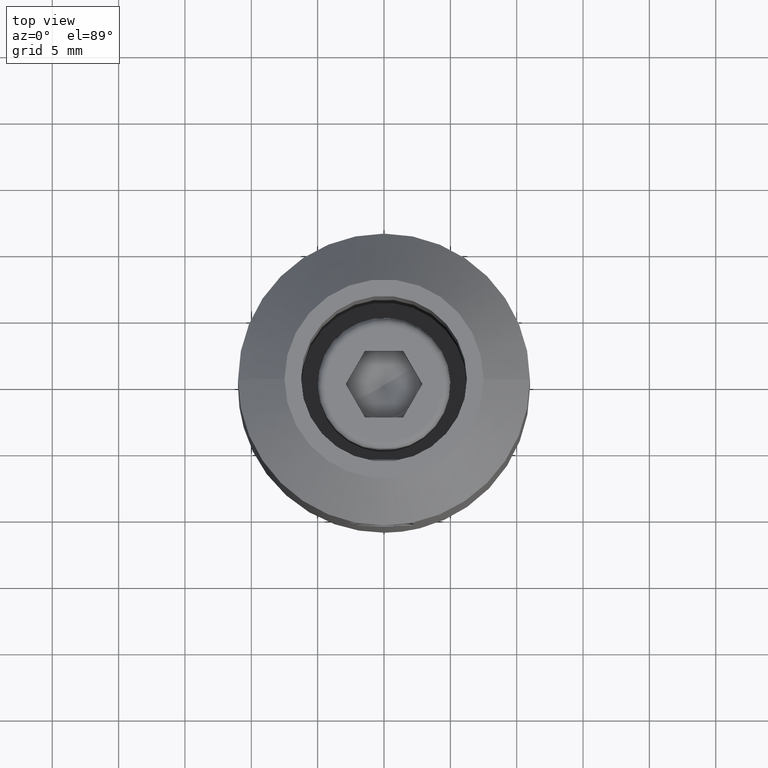
[diagram: clean part render]
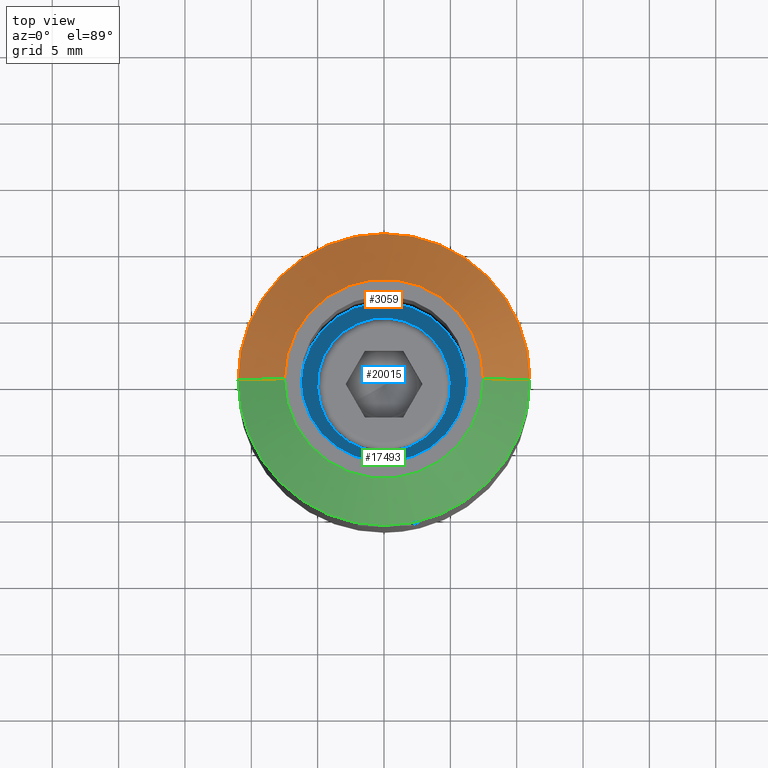
[diagram: same view with three faces highlighted in distinct colors, each labeled with its STEP entity id]
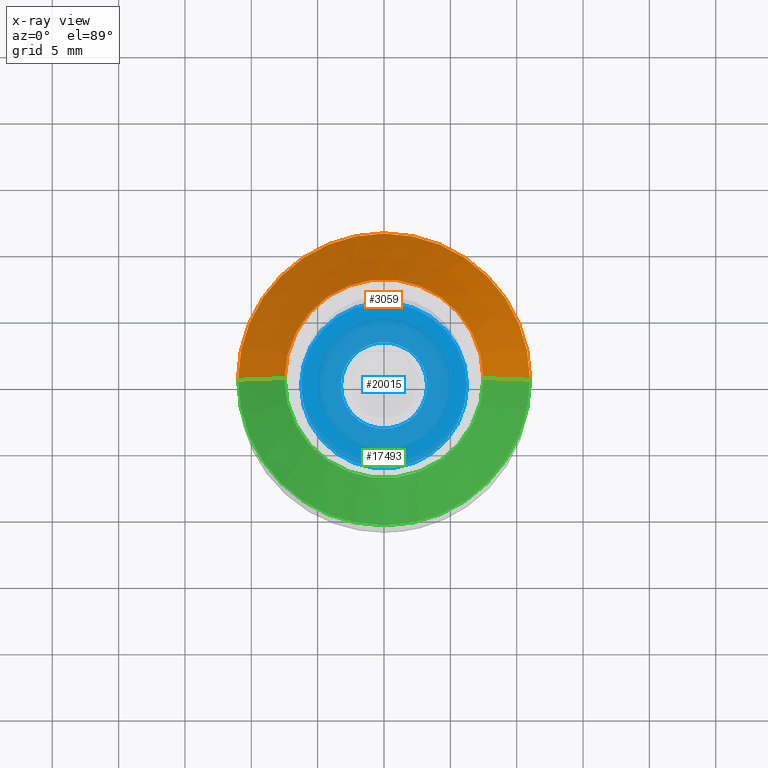
[diagram: x-ray of the same camera — body ghosted, the three highlighted faces saturated]
A machine part, top view with three faces highlighted in distinct colors.
The next image is the same camera in x-ray (body ghosted, the three faces saturated) — at least one of them is partly hidden behind the body in this view.
Their STEP definitions:

[orange] entity #3059 — the highlighted conical surface has half-angle 45 deg.
#14 = ORIENTED_EDGE ( 'NONE', *, *, #19400, .F. ) ;
#409 = CARTESIAN_POINT ( 'NONE',  ( 7.499999999999978684, 1.132798289211299923E-15, 35.00000000000000000 ) ) ;
#503 = CARTESIAN_POINT ( 'NONE',  ( -7.499999999999978684, 0.000000000000000000, 35.00000000000000000 ) ) ;
#655 = EDGE_LOOP ( 'NONE', ( #1588, #1096, #14, #19561 ) ) ;
#1096 = ORIENTED_EDGE ( 'NONE', *, *, #21125, .T. ) ;
#1588 = ORIENTED_EDGE ( 'NONE', *, *, #16878, .F. ) ;
#1961 = VECTOR ( 'NONE', #19309, 1000.000000000000114 ) ;
#2248 = LINE ( 'NONE', #12441, #1961 ) ;
#2313 = CARTESIAN_POINT ( 'NONE',  ( 0.000000000000000000, 0.000000000000000000, 31.50000000000000000 ) ) ;
#3059 = ADVANCED_FACE ( 'NONE', ( #21738 ), #10776, .T. ) ;
#3599 = DIRECTION ( 'NONE',  ( -0.7071067811865489050, 0.000000000000000000, -0.7071067811865460184 ) ) ;
#4793 = VERTEX_POINT ( 'NONE', #409 ) ;
#6211 = AXIS2_PLACEMENT_3D ( 'NONE', #2313, #21082, #9001 ) ;
#6497 = DIRECTION ( 'NONE',  ( -0.000000000000000000, -0.000000000000000000, -1.000000000000000000 ) ) ;
#7971 = CIRCLE ( 'NONE', #20912, 7.499999999999978684 ) ;
#8192 = VECTOR ( 'NONE', #3599, 1000.000000000000114 ) ;
#8581 = VERTEX_POINT ( 'NONE', #503 ) ;
#9001 = DIRECTION ( 'NONE',  ( -1.000000000000000000, 0.000000000000000000, 0.000000000000000000 ) ) ;
#10750 = CARTESIAN_POINT ( 'NONE',  ( 0.000000000000000000, 0.000000000000000000, 35.00000000000000000 ) ) ;
#10776 = CONICAL_SURFACE ( 'NONE', #6211, 10.99999999999999645, 0.7853981633974503884 ) ;
#12441 = CARTESIAN_POINT ( 'NONE',  ( 10.99999999999999645, 1.347111479062087616E-15, 31.50000000000000000 ) ) ;
#12501 = CARTESIAN_POINT ( 'NONE',  ( -10.99999999999999645, 0.000000000000000000, 31.50000000000000000 ) ) ;
#13729 = CIRCLE ( 'NONE', #14485, 10.99999999999999645 ) ;
#14039 = DIRECTION ( 'NONE',  ( 0.000000000000000000, 0.000000000000000000, 1.000000000000000000 ) ) ;
#14485 = AXIS2_PLACEMENT_3D ( 'NONE', #21856, #6497, #18417 ) ;
#14560 = LINE ( 'NONE', #19019, #8192 ) ;
#14792 = VERTEX_POINT ( 'NONE', #19492 ) ;
#15721 = VERTEX_POINT ( 'NONE', #12501 ) ;
#16878 = EDGE_CURVE ( 'NONE', #4793, #8581, #7971, .T. ) ;
#17636 = DIRECTION ( 'NONE',  ( 1.000000000000000000, 0.000000000000000000, 0.000000000000000000 ) ) ;
#18317 = EDGE_CURVE ( 'NONE', #8581, #15721, #14560, .T. ) ;
#18417 = DIRECTION ( 'NONE',  ( 1.000000000000000000, 0.000000000000000000, 0.000000000000000000 ) ) ;
#19019 = CARTESIAN_POINT ( 'NONE',  ( -10.99999999999999645, 0.000000000000000000, 31.50000000000000000 ) ) ;
#19309 = DIRECTION ( 'NONE',  ( 0.7071067811865489050, 8.659560562354950115E-17, -0.7071067811865460184 ) ) ;
#19400 = EDGE_CURVE ( 'NONE', #15721, #14792, #13729, .T. ) ;
#19492 = CARTESIAN_POINT ( 'NONE',  ( 10.99999999999999645, 1.347111479062088010E-15, 31.50000000000000000 ) ) ;
#19561 = ORIENTED_EDGE ( 'NONE', *, *, #18317, .F. ) ;
#20912 = AXIS2_PLACEMENT_3D ( 'NONE', #10750, #14039, #17636 ) ;
#21082 = DIRECTION ( 'NONE',  ( -0.000000000000000000, -0.000000000000000000, -1.000000000000000000 ) ) ;
#21125 = EDGE_CURVE ( 'NONE', #4793, #14792, #2248, .T. ) ;
#21738 = FACE_OUTER_BOUND ( 'NONE', #655, .T. ) ;
#21856 = CARTESIAN_POINT ( 'NONE',  ( 0.000000000000000000, 0.000000000000000000, 31.50000000000000000 ) ) ;

[blue] entity #20015 — the highlighted planar face has unit normal (0, 0, 1).
#835 = CARTESIAN_POINT ( 'NONE',  ( 0.000000000000000000, 0.000000000000000000, 5.499999999999998224 ) ) ;
#963 = CARTESIAN_POINT ( 'NONE',  ( 0.000000000000000000, 0.000000000000000000, 5.500000000000000000 ) ) ;
#982 = DIRECTION ( 'NONE',  ( -0.000000000000000000, -0.000000000000000000, -1.000000000000000000 ) ) ;
#1805 = DIRECTION ( 'NONE',  ( -1.000000000000000000, 0.000000000000000000, 0.000000000000000000 ) ) ;
#2124 = EDGE_CURVE ( 'NONE', #5769, #3531, #17768, .T. ) ;
#2562 = CARTESIAN_POINT ( 'NONE',  ( -3.250000000000000000, 0.000000000000000000, 5.500000000000000000 ) ) ;
#3531 = VERTEX_POINT ( 'NONE', #21843 ) ;
#3578 = DIRECTION ( 'NONE',  ( -0.000000000000000000, -0.000000000000000000, -1.000000000000000000 ) ) ;
#3994 = DIRECTION ( 'NONE',  ( 1.000000000000000000, 0.000000000000000000, -0.000000000000000000 ) ) ;
#4642 = AXIS2_PLACEMENT_3D ( 'NONE', #7213, #9212, #3994 ) ;
#5367 = CIRCLE ( 'NONE', #21564, 3.250000000000000000 ) ;
#5769 = VERTEX_POINT ( 'NONE', #2562 ) ;
#6544 = FACE_BOUND ( 'NONE', #12756, .T. ) ;
#7165 = ORIENTED_EDGE ( 'NONE', *, *, #10062, .T. ) ;
#7213 = CARTESIAN_POINT ( 'NONE',  ( 0.000000000000000000, 6.250000000000000000, 5.499999999999999112 ) ) ;
#7561 = EDGE_CURVE ( 'NONE', #8802, #13707, #16351, .T. ) ;
#8194 = ORIENTED_EDGE ( 'NONE', *, *, #7561, .F. ) ;
#8802 = VERTEX_POINT ( 'NONE', #15278 ) ;
#9212 = DIRECTION ( 'NONE',  ( 0.000000000000000000, 0.000000000000000000, 1.000000000000000000 ) ) ;
#9427 = DIRECTION ( 'NONE',  ( -0.000000000000000000, -0.000000000000000000, -1.000000000000000000 ) ) ;
#9611 = ORIENTED_EDGE ( 'NONE', *, *, #2124, .T. ) ;
#10062 = EDGE_CURVE ( 'NONE', #3531, #5769, #5367, .T. ) ;
#10677 = PLANE ( 'NONE',  #4642 ) ;
#10797 = DIRECTION ( 'NONE',  ( -1.000000000000000000, 0.000000000000000000, 0.000000000000000000 ) ) ;
#12659 = AXIS2_PLACEMENT_3D ( 'NONE', #21194, #17841, #10797 ) ;
#12732 = DIRECTION ( 'NONE',  ( -1.000000000000000000, 0.000000000000000000, 0.000000000000000000 ) ) ;
#12756 = EDGE_LOOP ( 'NONE', ( #9611, #7165 ) ) ;
#12845 = CARTESIAN_POINT ( 'NONE',  ( -6.250000000000000000, 0.000000000000000000, 5.499999999999998224 ) ) ;
#13491 = AXIS2_PLACEMENT_3D ( 'NONE', #835, #982, #12732 ) ;
#13707 = VERTEX_POINT ( 'NONE', #12845 ) ;
#14515 = FACE_OUTER_BOUND ( 'NONE', #20880, .T. ) ;
#15278 = CARTESIAN_POINT ( 'NONE',  ( 6.250000000000000000, 7.654042494670957606E-16, 5.499999999999998224 ) ) ;
#15351 = CARTESIAN_POINT ( 'NONE',  ( 0.000000000000000000, 0.000000000000000000, 5.500000000000000000 ) ) ;
#15372 = CIRCLE ( 'NONE', #13491, 6.250000000000000000 ) ;
#16224 = DIRECTION ( 'NONE',  ( -1.000000000000000000, 0.000000000000000000, 0.000000000000000000 ) ) ;
#16351 = CIRCLE ( 'NONE', #12659, 6.250000000000000000 ) ;
#17768 = CIRCLE ( 'NONE', #21204, 3.250000000000000000 ) ;
#17841 = DIRECTION ( 'NONE',  ( -0.000000000000000000, -0.000000000000000000, -1.000000000000000000 ) ) ;
#18419 = EDGE_CURVE ( 'NONE', #13707, #8802, #15372, .T. ) ;
#20015 = ADVANCED_FACE ( 'NONE', ( #6544, #14515 ), #10677, .T. ) ;
#20880 = EDGE_LOOP ( 'NONE', ( #21828, #8194 ) ) ;
#21194 = CARTESIAN_POINT ( 'NONE',  ( 0.000000000000000000, 0.000000000000000000, 5.499999999999998224 ) ) ;
#21204 = AXIS2_PLACEMENT_3D ( 'NONE', #963, #9427, #16224 ) ;
#21564 = AXIS2_PLACEMENT_3D ( 'NONE', #15351, #3578, #1805 ) ;
#21828 = ORIENTED_EDGE ( 'NONE', *, *, #18419, .F. ) ;
#21843 = CARTESIAN_POINT ( 'NONE',  ( 3.250000000000000000, 3.980102097228897738E-16, 5.500000000000000000 ) ) ;

[green] entity #17493 — the highlighted conical surface has half-angle 45 deg.
#409 = CARTESIAN_POINT ( 'NONE',  ( 7.499999999999978684, 1.132798289211299923E-15, 35.00000000000000000 ) ) ;
#503 = CARTESIAN_POINT ( 'NONE',  ( -7.499999999999978684, 0.000000000000000000, 35.00000000000000000 ) ) ;
#1034 = EDGE_CURVE ( 'NONE', #8581, #4793, #1249, .T. ) ;
#1249 = CIRCLE ( 'NONE', #14318, 7.499999999999978684 ) ;
#1259 = EDGE_CURVE ( 'NONE', #14792, #15721, #7932, .T. ) ;
#1961 = VECTOR ( 'NONE', #19309, 1000.000000000000114 ) ;
#2248 = LINE ( 'NONE', #12441, #1961 ) ;
#3599 = DIRECTION ( 'NONE',  ( -0.7071067811865489050, 0.000000000000000000, -0.7071067811865460184 ) ) ;
#4553 = DIRECTION ( 'NONE',  ( -1.000000000000000000, 0.000000000000000000, 0.000000000000000000 ) ) ;
#4562 = CARTESIAN_POINT ( 'NONE',  ( 0.000000000000000000, 0.000000000000000000, 35.00000000000000000 ) ) ;
#4793 = VERTEX_POINT ( 'NONE', #409 ) ;
#7043 = ORIENTED_EDGE ( 'NONE', *, *, #1034, .F. ) ;
#7688 = CONICAL_SURFACE ( 'NONE', #12023, 10.99999999999999645, 0.7853981633974503884 ) ;
#7712 = DIRECTION ( 'NONE',  ( -0.000000000000000000, -0.000000000000000000, -1.000000000000000000 ) ) ;
#7932 = CIRCLE ( 'NONE', #20771, 10.99999999999999645 ) ;
#8192 = VECTOR ( 'NONE', #3599, 1000.000000000000114 ) ;
#8581 = VERTEX_POINT ( 'NONE', #503 ) ;
#9615 = DIRECTION ( 'NONE',  ( 0.000000000000000000, 0.000000000000000000, 1.000000000000000000 ) ) ;
#10034 = FACE_OUTER_BOUND ( 'NONE', #16901, .T. ) ;
#10986 = ORIENTED_EDGE ( 'NONE', *, *, #18317, .T. ) ;
#12023 = AXIS2_PLACEMENT_3D ( 'NONE', #12826, #14603, #4553 ) ;
#12441 = CARTESIAN_POINT ( 'NONE',  ( 10.99999999999999645, 1.347111479062087616E-15, 31.50000000000000000 ) ) ;
#12501 = CARTESIAN_POINT ( 'NONE',  ( -10.99999999999999645, 0.000000000000000000, 31.50000000000000000 ) ) ;
#12826 = CARTESIAN_POINT ( 'NONE',  ( 0.000000000000000000, 0.000000000000000000, 31.50000000000000000 ) ) ;
#13206 = DIRECTION ( 'NONE',  ( 1.000000000000000000, 0.000000000000000000, 0.000000000000000000 ) ) ;
#14318 = AXIS2_PLACEMENT_3D ( 'NONE', #4562, #9615, #13206 ) ;
#14560 = LINE ( 'NONE', #19019, #8192 ) ;
#14603 = DIRECTION ( 'NONE',  ( -0.000000000000000000, -0.000000000000000000, -1.000000000000000000 ) ) ;
#14792 = VERTEX_POINT ( 'NONE', #19492 ) ;
#15721 = VERTEX_POINT ( 'NONE', #12501 ) ;
#16901 = EDGE_LOOP ( 'NONE', ( #19509, #7043, #10986, #18876 ) ) ;
#17493 = ADVANCED_FACE ( 'NONE', ( #10034 ), #7688, .T. ) ;
#18317 = EDGE_CURVE ( 'NONE', #8581, #15721, #14560, .T. ) ;
#18876 = ORIENTED_EDGE ( 'NONE', *, *, #1259, .F. ) ;
#19019 = CARTESIAN_POINT ( 'NONE',  ( -10.99999999999999645, 0.000000000000000000, 31.50000000000000000 ) ) ;
#19309 = DIRECTION ( 'NONE',  ( 0.7071067811865489050, 8.659560562354950115E-17, -0.7071067811865460184 ) ) ;
#19492 = CARTESIAN_POINT ( 'NONE',  ( 10.99999999999999645, 1.347111479062088010E-15, 31.50000000000000000 ) ) ;
#19509 = ORIENTED_EDGE ( 'NONE', *, *, #21125, .F. ) ;
#19754 = CARTESIAN_POINT ( 'NONE',  ( 0.000000000000000000, 0.000000000000000000, 31.50000000000000000 ) ) ;
#20771 = AXIS2_PLACEMENT_3D ( 'NONE', #19754, #7712, #21419 ) ;
#21125 = EDGE_CURVE ( 'NONE', #4793, #14792, #2248, .T. ) ;
#21419 = DIRECTION ( 'NONE',  ( 1.000000000000000000, 0.000000000000000000, 0.000000000000000000 ) ) ;